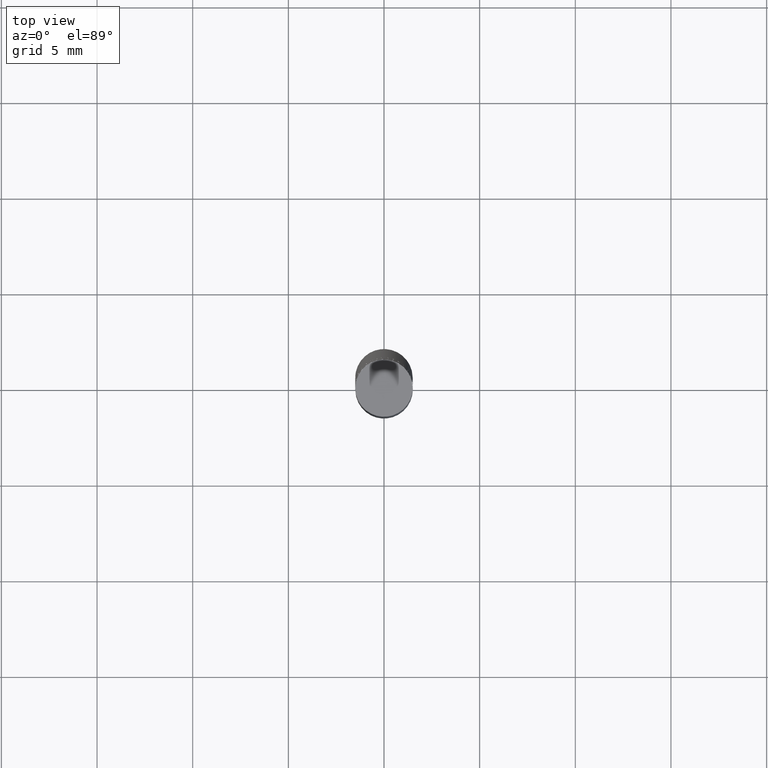
[diagram: clean part render]
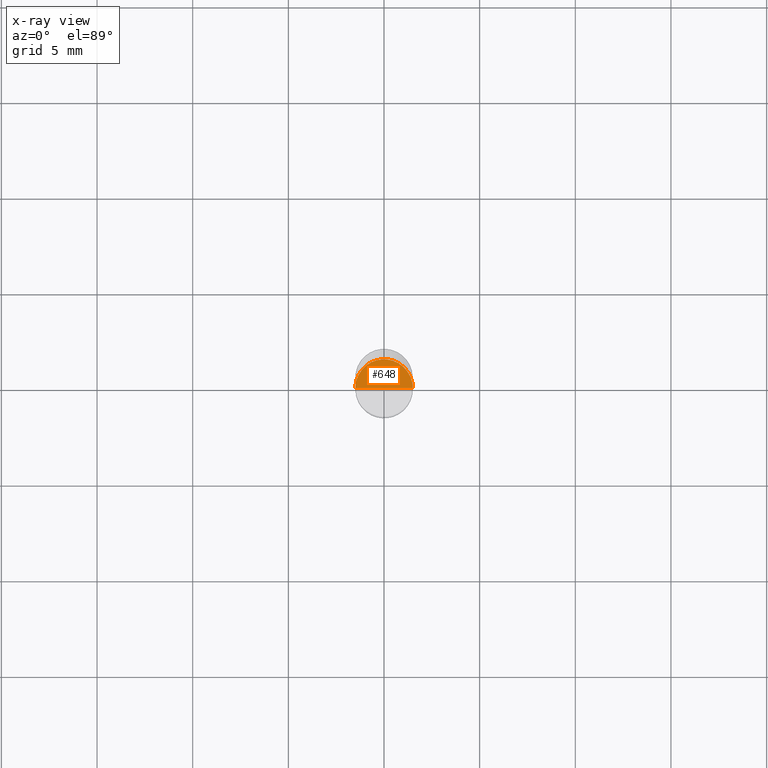
[diagram: x-ray — body ghosted, one internal face saturated and labeled with its STEP entity id]
A machine part, top view, then the same camera in x-ray: the body is ghosted and one INTERNAL B-rep face — a face not visible from any outside direction — is saturated and labeled: STEP entity #648.
In plain terms, the highlighted face is a freeform B-spline surface patch.
Its self-contained STEP definition (entity closure, byte-faithful):
#551=CARTESIAN_POINT('',(1.5,0.0,-5.0));
#552=CARTESIAN_POINT('',(1.5,1.5,-5.0));
#553=CARTESIAN_POINT('',(0.0,1.5,-5.0));
#554=CARTESIAN_POINT('',(-1.5,1.5,-5.0));
#555=CARTESIAN_POINT('',(-1.5,0.0,-5.0));
#556=CARTESIAN_POINT('',(0.0,0.0,-5.0));
#633=(
BOUNDED_SURFACE()
B_SPLINE_SURFACE(1,2,(
(#551,#552,#553,#554,#555),
(#556,#556,#556,#556,#556)
), .UNSPECIFIED.,.F.,.F.,.F.)
B_SPLINE_SURFACE_WITH_KNOTS((2,2),(3,2,3),(
0.0,1.0),(
0.0,0.5,1.0), .UNSPECIFIED.)
GEOMETRIC_REPRESENTATION_ITEM()
RATIONAL_B_SPLINE_SURFACE(((1.0,0.707106781187,1.0,0.707106781187,1.0),
(1.0,0.707106781187,1.0,0.707106781187,1.0)
))
REPRESENTATION_ITEM('')
SURFACE()
);
#634=(
BOUNDED_CURVE()
B_SPLINE_CURVE(2,(#555,#554,#553,#552,#551),.UNSPECIFIED.,.F.,.F.)
B_SPLINE_CURVE_WITH_KNOTS((3,2,3),
(0.0,0.5,1.0),.UNSPECIFIED.)
CURVE()
GEOMETRIC_REPRESENTATION_ITEM()
RATIONAL_B_SPLINE_CURVE((1.0,0.707106781187,1.0,0.707106781187,1.0))
REPRESENTATION_ITEM('')
);
#635=(
BOUNDED_CURVE()
B_SPLINE_CURVE(1,(#551,#556),.UNSPECIFIED.,.F.,.F.)
B_SPLINE_CURVE_WITH_KNOTS((2,2),
(0.0,1.0),.UNSPECIFIED.)
CURVE()
GEOMETRIC_REPRESENTATION_ITEM()
RATIONAL_B_SPLINE_CURVE((1.0,1.0))
REPRESENTATION_ITEM('')
);
#636=(
BOUNDED_CURVE()
B_SPLINE_CURVE(1,(#556,#555),.UNSPECIFIED.,.F.,.F.)
B_SPLINE_CURVE_WITH_KNOTS((2,2),
(0.0,1.0),.UNSPECIFIED.)
CURVE()
GEOMETRIC_REPRESENTATION_ITEM()
RATIONAL_B_SPLINE_CURVE((1.0,1.0))
REPRESENTATION_ITEM('')
);
#637=VERTEX_POINT('',#551);
#638=VERTEX_POINT('',#555);
#639=VERTEX_POINT('',#556);
#640=EDGE_CURVE('',#638,#637,#634,.T.);
#641=EDGE_CURVE('',#637,#639,#635,.T.);
#642=EDGE_CURVE('',#639,#638,#636,.T.);
#643=ORIENTED_EDGE('',*,*,#640,.T.);
#644=ORIENTED_EDGE('',*,*,#641,.T.);
#645=ORIENTED_EDGE('',*,*,#642,.T.);
#646=EDGE_LOOP('',(#643,#644,#645));
#647=FACE_OUTER_BOUND('',#646,.T.);
#648=ADVANCED_FACE('',(#647),#633,.T.);